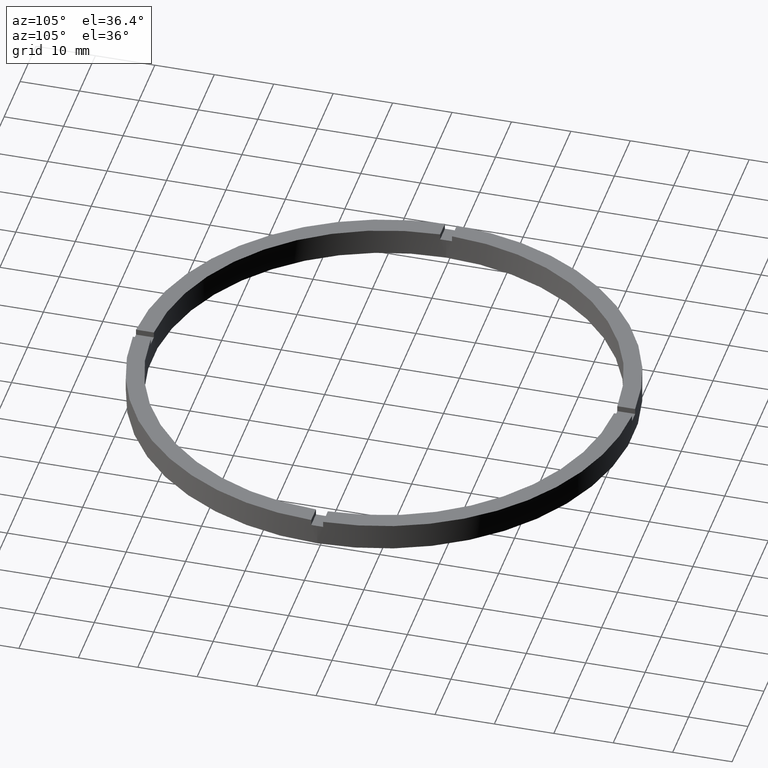
[diagram: clean part render]
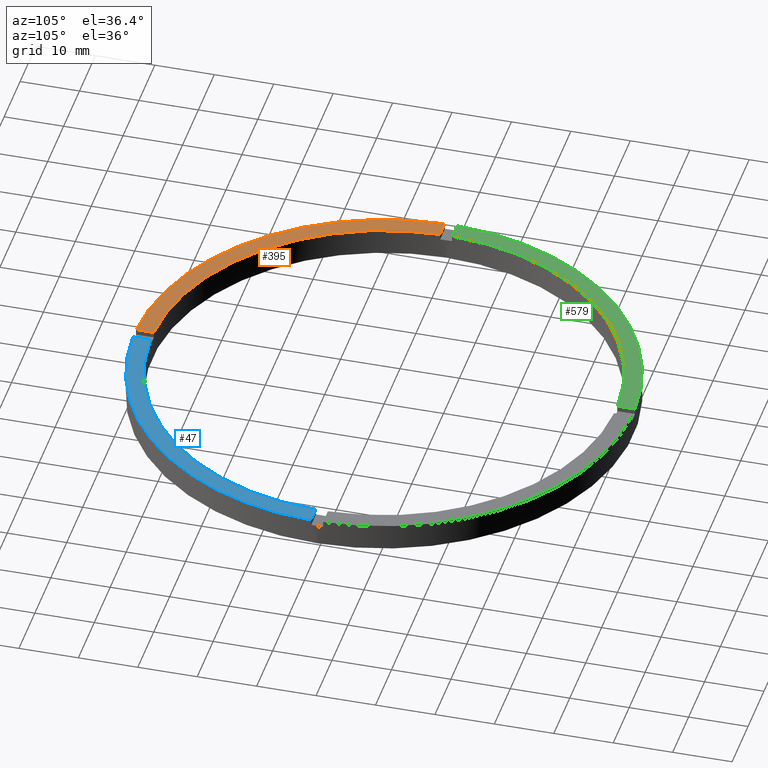
[diagram: same view with three faces highlighted in distinct colors, each labeled with its STEP entity id]
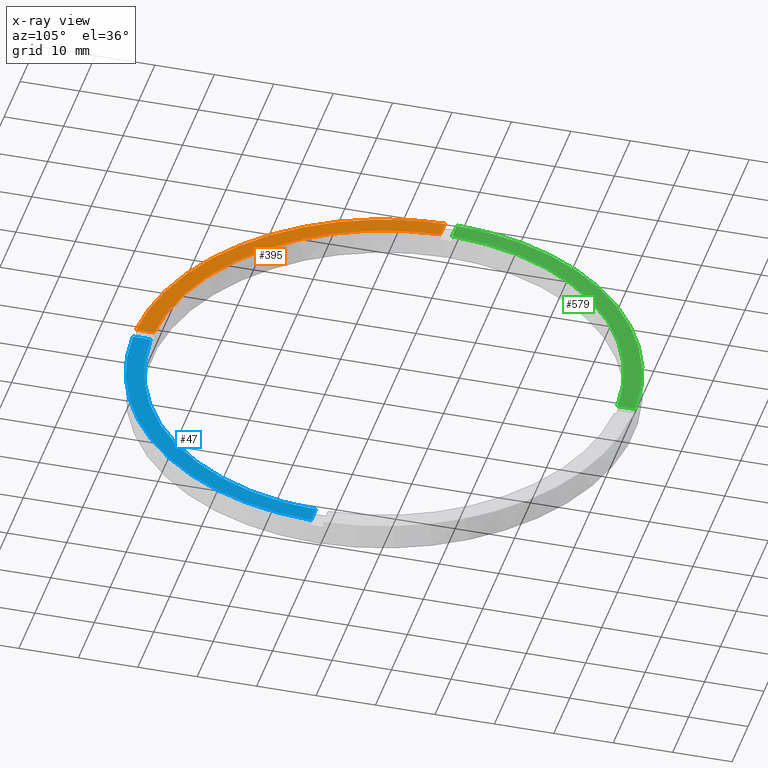
[diagram: x-ray of the same camera — body ghosted, the three highlighted faces saturated]
A machine part, auxiliary view with three faces highlighted in distinct colors.
The next image is the same camera in x-ray (body ghosted, the three faces saturated) — at least one of them is partly hidden behind the body in this view.
Their STEP definitions:

[orange] entity #395 — the highlighted planar face has unit normal (0, 0, 1).
#28 = CIRCLE ( 'NONE', #624, 39.00000000000000000 ) ;
#92 = DIRECTION ( 'NONE',  ( 0.000000000000000000, 0.000000000000000000, 1.000000000000000000 ) ) ;
#98 = CARTESIAN_POINT ( 'NONE',  ( -32.00000000000018474, -1.000000000000027089, 4.500000000000000000 ) ) ;
#101 = DIRECTION ( 'NONE',  ( 0.000000000000000000, 0.000000000000000000, 1.000000000000000000 ) ) ;
#129 = DIRECTION ( 'NONE',  ( 1.301042606982605074E-16, -1.000000000000000000, 0.000000000000000000 ) ) ;
#142 = CIRCLE ( 'NONE', #158, 42.00000000000000000 ) ;
#150 = DIRECTION ( 'NONE',  ( 1.000000000000000000, 0.000000000000000000, -0.000000000000000000 ) ) ;
#153 = VECTOR ( 'NONE', #129, 1000.000000000000000 ) ;
#158 = AXIS2_PLACEMENT_3D ( 'NONE', #778, #101, #283 ) ;
#211 = EDGE_CURVE ( 'NONE', #656, #780, #142, .T. ) ;
#236 = VERTEX_POINT ( 'NONE', #442 ) ;
#273 = EDGE_CURVE ( 'NONE', #315, #780, #693, .T. ) ;
#278 = ORIENTED_EDGE ( 'NONE', *, *, #703, .F. ) ;
#283 = DIRECTION ( 'NONE',  ( 1.000000000000000000, 0.000000000000000000, 0.000000000000000000 ) ) ;
#296 = CARTESIAN_POINT ( 'NONE',  ( -1.000000000000159206, -38.98717737923584536, 4.500000000000000000 ) ) ;
#315 = VERTEX_POINT ( 'NONE', #296 ) ;
#362 = CARTESIAN_POINT ( 'NONE',  ( -1.000000000000160094, -32.00000000000017764, 4.500000000000000000 ) ) ;
#368 = EDGE_LOOP ( 'NONE', ( #510, #278, #747, #378 ) ) ;
#378 = ORIENTED_EDGE ( 'NONE', *, *, #211, .T. ) ;
#391 = DIRECTION ( 'NONE',  ( 1.000000000000000000, 0.000000000000000000, 0.000000000000000000 ) ) ;
#395 = ADVANCED_FACE ( 'NONE', ( #417 ), #522, .T. ) ;
#399 = EDGE_CURVE ( 'NONE', #656, #236, #438, .T. ) ;
#405 = CARTESIAN_POINT ( 'NONE',  ( -41.98809355043403713, -1.000000000000029088, 4.500000000000000000 ) ) ;
#417 = FACE_OUTER_BOUND ( 'NONE', #368, .T. ) ;
#438 = LINE ( 'NONE', #98, #698 ) ;
#442 = CARTESIAN_POINT ( 'NONE',  ( -38.98717737923585247, -1.000000000000028422, 4.500000000000000000 ) ) ;
#461 = CARTESIAN_POINT ( 'NONE',  ( 0.000000000000000000, 0.000000000000000000, 4.500000000000000000 ) ) ;
#510 = ORIENTED_EDGE ( 'NONE', *, *, #273, .F. ) ;
#522 = PLANE ( 'NONE',  #590 ) ;
#588 = CARTESIAN_POINT ( 'NONE',  ( 0.000000000000000000, 0.000000000000000000, 4.500000000000000000 ) ) ;
#590 = AXIS2_PLACEMENT_3D ( 'NONE', #588, #92, #150 ) ;
#624 = AXIS2_PLACEMENT_3D ( 'NONE', #461, #755, #391 ) ;
#656 = VERTEX_POINT ( 'NONE', #405 ) ;
#693 = LINE ( 'NONE', #362, #153 ) ;
#694 = CARTESIAN_POINT ( 'NONE',  ( -1.000000000000158762, -41.98809355043403002, 4.500000000000000000 ) ) ;
#698 = VECTOR ( 'NONE', #771, 1000.000000000000000 ) ;
#703 = EDGE_CURVE ( 'NONE', #236, #315, #28, .T. ) ;
#747 = ORIENTED_EDGE ( 'NONE', *, *, #399, .F. ) ;
#755 = DIRECTION ( 'NONE',  ( 0.000000000000000000, 0.000000000000000000, 1.000000000000000000 ) ) ;
#771 = DIRECTION ( 'NONE',  ( 1.000000000000000000, 1.951563910473907735E-16, -0.000000000000000000 ) ) ;
#778 = CARTESIAN_POINT ( 'NONE',  ( 0.000000000000000000, 0.000000000000000000, 4.500000000000000000 ) ) ;
#780 = VERTEX_POINT ( 'NONE', #694 ) ;

[blue] entity #47 — the highlighted planar face has unit normal (0, 0, 1).
#2 = AXIS2_PLACEMENT_3D ( 'NONE', #567, #324, #333 ) ;
#16 = EDGE_CURVE ( 'NONE', #70, #673, #127, .T. ) ;
#32 = VERTEX_POINT ( 'NONE', #274 ) ;
#47 = ADVANCED_FACE ( 'NONE', ( #123 ), #515, .T. ) ;
#70 = VERTEX_POINT ( 'NONE', #84 ) ;
#84 = CARTESIAN_POINT ( 'NONE',  ( 0.9999999999998412381, -41.98809355043403713, 4.500000000000000000 ) ) ;
#123 = FACE_OUTER_BOUND ( 'NONE', #641, .T. ) ;
#125 = EDGE_CURVE ( 'NONE', #32, #760, #432, .T. ) ;
#127 = LINE ( 'NONE', #424, #650 ) ;
#134 = ORIENTED_EDGE ( 'NONE', *, *, #16, .F. ) ;
#147 = VECTOR ( 'NONE', #737, 1000.000000000000000 ) ;
#226 = CARTESIAN_POINT ( 'NONE',  ( 31.99999999999999289, -1.000000000000157430, 4.500000000000000000 ) ) ;
#250 = AXIS2_PLACEMENT_3D ( 'NONE', #350, #712, #415 ) ;
#274 = CARTESIAN_POINT ( 'NONE',  ( 38.98717737923584536, -1.000000000000156763, 4.500000000000000000 ) ) ;
#324 = DIRECTION ( 'NONE',  ( 0.000000000000000000, 0.000000000000000000, 1.000000000000000000 ) ) ;
#333 = DIRECTION ( 'NONE',  ( 1.000000000000000000, 0.000000000000000000, 0.000000000000000000 ) ) ;
#350 = CARTESIAN_POINT ( 'NONE',  ( 0.000000000000000000, 0.000000000000000000, 4.500000000000000000 ) ) ;
#415 = DIRECTION ( 'NONE',  ( 1.000000000000000000, 0.000000000000000000, 0.000000000000000000 ) ) ;
#424 = CARTESIAN_POINT ( 'NONE',  ( 0.9999999999998400169, -32.00000000000017764, 4.500000000000000000 ) ) ;
#432 = LINE ( 'NONE', #226, #147 ) ;
#468 = EDGE_CURVE ( 'NONE', #673, #32, #707, .T. ) ;
#488 = ORIENTED_EDGE ( 'NONE', *, *, #468, .F. ) ;
#515 = PLANE ( 'NONE',  #666 ) ;
#532 = ORIENTED_EDGE ( 'NONE', *, *, #710, .T. ) ;
#534 = DIRECTION ( 'NONE',  ( -1.301042606982605074E-16, 1.000000000000000000, -0.000000000000000000 ) ) ;
#537 = ORIENTED_EDGE ( 'NONE', *, *, #125, .F. ) ;
#550 = CIRCLE ( 'NONE', #2, 42.00000000000000000 ) ;
#567 = CARTESIAN_POINT ( 'NONE',  ( 0.000000000000000000, 0.000000000000000000, 4.500000000000000000 ) ) ;
#589 = CARTESIAN_POINT ( 'NONE',  ( 0.000000000000000000, 0.000000000000000000, 4.500000000000000000 ) ) ;
#627 = CARTESIAN_POINT ( 'NONE',  ( 41.98809355043403002, -1.000000000000156541, 4.500000000000000000 ) ) ;
#641 = EDGE_LOOP ( 'NONE', ( #537, #488, #134, #532 ) ) ;
#649 = DIRECTION ( 'NONE',  ( 0.000000000000000000, 0.000000000000000000, 1.000000000000000000 ) ) ;
#650 = VECTOR ( 'NONE', #534, 1000.000000000000000 ) ;
#666 = AXIS2_PLACEMENT_3D ( 'NONE', #589, #649, #762 ) ;
#673 = VERTEX_POINT ( 'NONE', #749 ) ;
#707 = CIRCLE ( 'NONE', #250, 39.00000000000000000 ) ;
#710 = EDGE_CURVE ( 'NONE', #70, #760, #550, .T. ) ;
#712 = DIRECTION ( 'NONE',  ( 0.000000000000000000, 0.000000000000000000, 1.000000000000000000 ) ) ;
#737 = DIRECTION ( 'NONE',  ( 1.000000000000000000, 8.673617379884034239E-17, 0.000000000000000000 ) ) ;
#749 = CARTESIAN_POINT ( 'NONE',  ( 0.9999999999998409050, -38.98717737923585958, 4.500000000000000000 ) ) ;
#760 = VERTEX_POINT ( 'NONE', #627 ) ;
#762 = DIRECTION ( 'NONE',  ( 1.000000000000000000, 0.000000000000000000, -0.000000000000000000 ) ) ;

[green] entity #579 — the highlighted planar face has unit normal (0, 0, 1).
#12 = DIRECTION ( 'NONE',  ( 0.000000000000000000, 0.000000000000000000, 1.000000000000000000 ) ) ;
#19 = VERTEX_POINT ( 'NONE', #615 ) ;
#63 = EDGE_CURVE ( 'NONE', #103, #262, #375, .T. ) ;
#88 = AXIS2_PLACEMENT_3D ( 'NONE', #647, #536, #257 ) ;
#103 = VERTEX_POINT ( 'NONE', #686 ) ;
#180 = FACE_OUTER_BOUND ( 'NONE', #577, .T. ) ;
#181 = CARTESIAN_POINT ( 'NONE',  ( 0.000000000000000000, 0.000000000000000000, 4.500000000000000000 ) ) ;
#202 = DIRECTION ( 'NONE',  ( 1.000000000000000000, 0.000000000000000000, 0.000000000000000000 ) ) ;
#207 = VERTEX_POINT ( 'NONE', #774 ) ;
#212 = DIRECTION ( 'NONE',  ( 0.000000000000000000, 0.000000000000000000, 1.000000000000000000 ) ) ;
#215 = DIRECTION ( 'NONE',  ( 1.000000000000000000, 0.000000000000000000, -0.000000000000000000 ) ) ;
#220 = CARTESIAN_POINT ( 'NONE',  ( -1.000000000000025757, 32.00000000000000000, 4.500000000000000000 ) ) ;
#252 = ORIENTED_EDGE ( 'NONE', *, *, #357, .F. ) ;
#257 = DIRECTION ( 'NONE',  ( 1.000000000000000000, 0.000000000000000000, 0.000000000000000000 ) ) ;
#262 = VERTEX_POINT ( 'NONE', #623 ) ;
#266 = CARTESIAN_POINT ( 'NONE',  ( 0.000000000000000000, 0.000000000000000000, 4.500000000000000000 ) ) ;
#338 = EDGE_CURVE ( 'NONE', #19, #262, #403, .T. ) ;
#357 = EDGE_CURVE ( 'NONE', #103, #207, #690, .T. ) ;
#360 = AXIS2_PLACEMENT_3D ( 'NONE', #181, #212, #215 ) ;
#375 = CIRCLE ( 'NONE', #751, 42.00000000000000000 ) ;
#403 = LINE ( 'NONE', #538, #434 ) ;
#434 = VECTOR ( 'NONE', #636, 1000.000000000000000 ) ;
#444 = CIRCLE ( 'NONE', #88, 39.00000000000000000 ) ;
#508 = EDGE_CURVE ( 'NONE', #207, #19, #444, .T. ) ;
#536 = DIRECTION ( 'NONE',  ( 0.000000000000000000, 0.000000000000000000, 1.000000000000000000 ) ) ;
#538 = CARTESIAN_POINT ( 'NONE',  ( -32.00000000000018474, 0.9999999999999729106, 4.500000000000000000 ) ) ;
#577 = EDGE_LOOP ( 'NONE', ( #252, #660, #646, #742 ) ) ;
#579 = ADVANCED_FACE ( 'NONE', ( #180 ), #721, .T. ) ;
#615 = CARTESIAN_POINT ( 'NONE',  ( -38.98717737923585247, 0.9999999999999715783, 4.500000000000000000 ) ) ;
#623 = CARTESIAN_POINT ( 'NONE',  ( -41.98809355043403713, 0.9999999999999709122, 4.500000000000000000 ) ) ;
#636 = DIRECTION ( 'NONE',  ( -1.000000000000000000, -1.951563910473907735E-16, 0.000000000000000000 ) ) ;
#646 = ORIENTED_EDGE ( 'NONE', *, *, #338, .F. ) ;
#647 = CARTESIAN_POINT ( 'NONE',  ( 0.000000000000000000, 0.000000000000000000, 4.500000000000000000 ) ) ;
#657 = DIRECTION ( 'NONE',  ( -0.000000000000000000, -1.000000000000000000, -0.000000000000000000 ) ) ;
#660 = ORIENTED_EDGE ( 'NONE', *, *, #63, .T. ) ;
#686 = CARTESIAN_POINT ( 'NONE',  ( -1.000000000000025757, 41.98809355043403713, 4.500000000000000000 ) ) ;
#690 = LINE ( 'NONE', #220, #705 ) ;
#705 = VECTOR ( 'NONE', #657, 1000.000000000000000 ) ;
#721 = PLANE ( 'NONE',  #360 ) ;
#742 = ORIENTED_EDGE ( 'NONE', *, *, #508, .F. ) ;
#751 = AXIS2_PLACEMENT_3D ( 'NONE', #266, #12, #202 ) ;
#774 = CARTESIAN_POINT ( 'NONE',  ( -1.000000000000025757, 38.98717737923585247, 4.500000000000000000 ) ) ;